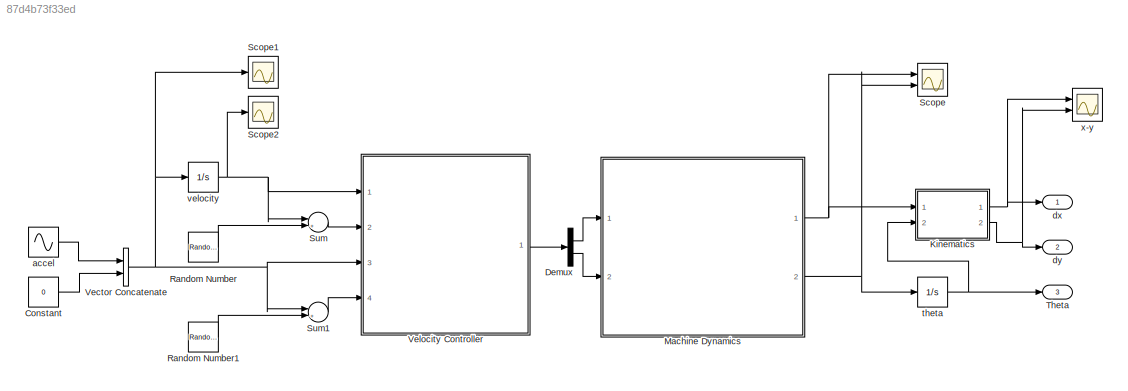
MODEL slx_87d4b73f33ed
KIND model
CONFIG AbsTol = auto
CONFIG EnableMultiTasking = off
CONFIG FixedStep = auto
CONFIG MaxStep = auto
CONFIG MinStep = auto
CONFIG RelTol = 1e-3
CONFIG SampleTimeConstraint = Unconstrained
CONFIG Solver = VariableStepAuto
CONFIG SolverName = VariableStepAuto
CONFIG StartTime = 0.0
CONFIG StopTime = 2*pi/traj_omega
BLOCK [Constant] Constant
  Value = 0
BLOCK [Demux] Demux
  DisplayOption = bar
  Outputs = 2
  Ports = [1, 2]
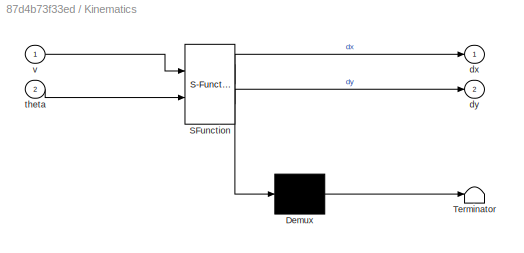
BLOCK [SubSystem] Kinematics
  ErrorFcn = Stateflow.Translate.translate
  PermitHierarchicalResolution = ExplicitOnly
  Ports = [2, 2]
  RequestExecContextInheritance = off
  SFBlockType = MATLAB Function
  TreatAsAtomicUnit = on
BLOCK [Demux] Kinematics/ Demux 
  Outputs = 1
  Ports = [1, 1]
BLOCK [S-Function] Kinematics/ SFunction 
  EnableBusSupport = on
  FunctionName = sf_sfun
  PortCounts = [2 3]
  Ports = [2, 3]
  SFcnIsStateOwnerBlock = off
  SFunctionDeploymentMode = off
  Tag = Stateflow S-Function Model 1
BLOCK [Terminator] Kinematics/ Terminator 
BLOCK [Outport] Kinematics/dx
  IconDisplay = Port number
BLOCK [Outport] Kinematics/dy
  IconDisplay = Port number
  Port = 2
BLOCK [Inport] Kinematics/theta
  IconDisplay = Port number
  Port = 2
BLOCK [Inport] Kinematics/v
  IconDisplay = Port number
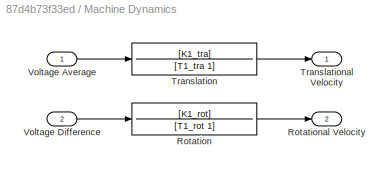
BLOCK [SubSystem] Machine Dynamics
  Ports = [2, 2]
  RequestExecContextInheritance = off
BLOCK [TransferFcn] Machine Dynamics/Rotation
  Denominator = [T1_rot 1]
  Numerator = [K1_rot]
BLOCK [Outport] Machine Dynamics/Rotational Velocity
  IconDisplay = Port number
  Port = 2
BLOCK [TransferFcn] Machine Dynamics/Translation
  Denominator = [T1_tra 1]
  Numerator = [K1_tra]
BLOCK [Outport] Machine Dynamics/Translational Velocity
  IconDisplay = Port number
BLOCK [Inport] Machine Dynamics/Voltage Average
  IconDisplay = Port number
BLOCK [Inport] Machine Dynamics/Voltage Difference
  IconDisplay = Port number
  Port = 2
BLOCK [RandomNumber] Random Number
  SampleTime = 0.001
  Variance = 0
BLOCK [RandomNumber] Random Number1
  SampleTime = 0.1
  Variance = 0
BLOCK [Scope] Scope
  Floating = off
  NumInputPorts = 2
  Ports = [2]
  ScopeSpecificationString = Simulink.scopes.TimeScopeBlockCfg('CurrentConfiguration', extmgr.ConfigurationSet(extmgr.Configuration('Core','General UI',true),extmgr.Configuration('Core','Source UI',true),extmgr.Configuration('Sources','WiredSimulink',true,'DataLoggingVariableName','ScopeData1'),extmgr.Configuration('Visuals','Time Domain',true,'SerializedDisplays',{struct('MinYLimReal','-224.99756','MaxYLimReal','2024.978','Y...<+1387ch>
BLOCK [Scope] Scope1
  Floating = off
  NumInputPorts = 1
  Ports = [1]
  ScopeSpecificationString = Simulink.scopes.TimeScopeBlockCfg('CurrentConfiguration', extmgr.ConfigurationSet(extmgr.Configuration('Core','General UI',true),extmgr.Configuration('Core','Source UI',true),extmgr.Configuration('Sources','WiredSimulink',true,'DataLoggingVariableName','ScopeData3'),extmgr.Configuration('Visuals','Time Domain',true,'SerializedDisplays',{struct('MinYLimReal','-11227.80069','MaxYLimReal','11227.8006...<+1394ch>
BLOCK [Scope] Scope2
  Floating = off
  NumInputPorts = 1
  Ports = [1]
  ScopeSpecificationString = Simulink.scopes.TimeScopeBlockCfg('CurrentConfiguration', extmgr.ConfigurationSet(extmgr.Configuration('Core','General UI',true),extmgr.Configuration('Core','Source UI',true),extmgr.Configuration('Sources','WiredSimulink',true,'DataLoggingVariableName','ScopeData4'),extmgr.Configuration('Visuals','Time Domain',true,'SerializedDisplays',{struct('MinYLimReal','-150.00000','MaxYLimReal','1350.00000',...<+1454ch>
BLOCK [Sum] Sum
  IconShape = round
  InputSameDT = off
  Inputs = |++
  OutDataTypeStr = Inherit: Inherit via internal rule
  Ports = [2, 1]
  SaturateOnIntegerOverflow = off
BLOCK [Sum] Sum1
  IconShape = round
  InputSameDT = off
  Inputs = |++
  OutDataTypeStr = Inherit: Inherit via internal rule
  Ports = [2, 1]
  SaturateOnIntegerOverflow = off
BLOCK [Outport] Theta
  IconDisplay = Port number
  Port = 3
BLOCK [Concatenate] Vector Concatenate
  Ports = [2, 1]
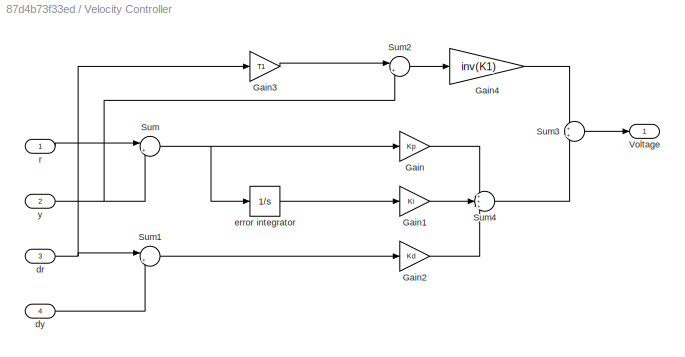
BLOCK [SubSystem] Velocity Controller
  Ports = [4, 1]
  RequestExecContextInheritance = off
BLOCK [Gain] Velocity Controller/Gain
  Gain = Kp
  Multiplication = Matrix(K*u)
  OutDataTypeStr = Inherit: Inherit via internal rule
  ParamDataTypeStr = Inherit: Inherit via internal rule
  SaturateOnIntegerOverflow = off
BLOCK [Gain] Velocity Controller/Gain1
  Gain = Ki
  Multiplication = Matrix(K*u)
  OutDataTypeStr = Inherit: Inherit via internal rule
  ParamDataTypeStr = Inherit: Inherit via internal rule
  SaturateOnIntegerOverflow = off
BLOCK [Gain] Velocity Controller/Gain2
  Gain = Kd
  Multiplication = Matrix(K*u)
  OutDataTypeStr = Inherit: Inherit via internal rule
  ParamDataTypeStr = Inherit: Inherit via internal rule
  SaturateOnIntegerOverflow = off
BLOCK [Gain] Velocity Controller/Gain3
  Gain = T1
  Multiplication = Matrix(K*u)
  OutDataTypeStr = Inherit: Inherit via internal rule
  ParamDataTypeStr = Inherit: Inherit via internal rule
  SaturateOnIntegerOverflow = off
BLOCK [Gain] Velocity Controller/Gain4
  Gain = inv(K1)
  Multiplication = Matrix(K*u)
  OutDataTypeStr = Inherit: Inherit via internal rule
  ParamDataTypeStr = Inherit: Inherit via internal rule
  SaturateOnIntegerOverflow = off
BLOCK [Sum] Velocity Controller/Sum
  IconShape = round
  InputSameDT = off
  Inputs = |+-
  OutDataTypeStr = Inherit: Inherit via internal rule
  Ports = [2, 1]
  SaturateOnIntegerOverflow = off
BLOCK [Sum] Velocity Controller/Sum1
  IconShape = round
  InputSameDT = off
  Inputs = |+-
  OutDataTypeStr = Inherit: Inherit via internal rule
  Ports = [2, 1]
  SaturateOnIntegerOverflow = off
BLOCK [Sum] Velocity Controller/Sum2
  IconShape = round
  InputSameDT = off
  Inputs = |++
  OutDataTypeStr = Inherit: Inherit via internal rule
  Ports = [2, 1]
  SaturateOnIntegerOverflow = off
BLOCK [Sum] Velocity Controller/Sum3
  IconShape = round
  InputSameDT = off
  OutDataTypeStr = Inherit: Inherit via internal rule
  Ports = [2, 1]
  SaturateOnIntegerOverflow = off
BLOCK [Sum] Velocity Controller/Sum4
  IconShape = round
  InputSameDT = off
  Inputs = +++
  OutDataTypeStr = Inherit: Inherit via internal rule
  Ports = [3, 1]
  SaturateOnIntegerOverflow = off
BLOCK [Outport] Velocity Controller/Voltage
  IconDisplay = Port number
BLOCK [Inport] Velocity Controller/dr
  IconDisplay = Port number
  Port = 3
BLOCK [Inport] Velocity Controller/dy
  IconDisplay = Port number
  Port = 4
BLOCK [Integrator] Velocity Controller/error integrator
  Ports = [1, 1]
BLOCK [Inport] Velocity Controller/r
  IconDisplay = Port number
BLOCK [Inport] Velocity Controller/y
  IconDisplay = Port number
  Port = 2
BLOCK [Sin] accel
  Amplitude = v_max / 2 * traj_omega
  Frequency = traj_omega
  Ports = [0, 1]
  SampleTime = 0
BLOCK [Outport] dx
  IconDisplay = Port number
BLOCK [Outport] dy
  IconDisplay = Port number
  Port = 2
BLOCK [Integrator] theta
  Ports = [1, 1]
BLOCK [Integrator] velocity
  Ports = [1, 1]
BLOCK [Scope] x-y
  Floating = off
  NumInputPorts = 2
  Ports = [2]
  ScopeSpecificationString = Simulink.scopes.TimeScopeBlockCfg('CurrentConfiguration', extmgr.ConfigurationSet(extmgr.Configuration('Core','General UI',true),extmgr.Configuration('Core','Source UI',true),extmgr.Configuration('Sources','WiredSimulink',true),extmgr.Configuration('Visuals','Time Domain',true,'SerializedDisplays',{struct('MinYLimReal','-224.99756','MaxYLimReal','2024.978','YLabelReal','','MinYLimMag',' 0.00000','...<+1414ch>
LINE Constant:1 -> Vector Concatenate:2
LINE Demux:1 -> Machine Dynamics:1
LINE Demux:2 -> Machine Dynamics:2
NET Kinematics:1 -> dx:1, x-y:1
NET Kinematics:2 -> dy:1, x-y:2
LINE Machine Dynamics/Rotation:1 -> Machine Dynamics/Rotational Velocity:1
LINE Machine Dynamics/Translation:1 -> Machine Dynamics/Translational Velocity:1
LINE Machine Dynamics/Voltage Average:1 -> Machine Dynamics/Translation:1
LINE Machine Dynamics/Voltage Difference:1 -> Machine Dynamics/Rotation:1
NET Machine Dynamics:1 -> Kinematics:1, Scope:1
NET Machine Dynamics:2 -> Scope:2, theta:1
LINE Random Number1:1 -> Sum1:2
LINE Random Number:1 -> Sum:2
LINE Sum1:1 -> Velocity Controller:4
LINE Sum:1 -> Velocity Controller:2
NET Vector Concatenate:1 -> Scope1:1, Sum1:1, Velocity Controller:3, velocity:1
LINE Velocity Controller/Gain1:1 -> Velocity Controller/Sum4:2
LINE Velocity Controller/Gain2:1 -> Velocity Controller/Sum4:3
LINE Velocity Controller/Gain3:1 -> Velocity Controller/Sum2:1
LINE Velocity Controller/Gain4:1 -> Velocity Controller/Sum3:1
LINE Velocity Controller/Gain:1 -> Velocity Controller/Sum4:1
LINE Velocity Controller/Sum1:1 -> Velocity Controller/Gain2:1
LINE Velocity Controller/Sum2:1 -> Velocity Controller/Gain4:1
LINE Velocity Controller/Sum3:1 -> Velocity Controller/Voltage:1
LINE Velocity Controller/Sum4:1 -> Velocity Controller/Sum3:2
NET Velocity Controller/Sum:1 -> Velocity Controller/Gain:1, Velocity Controller/error integrator:1
NET Velocity Controller/dr:1 -> Velocity Controller/Gain3:1, Velocity Controller/Sum1:1
LINE Velocity Controller/dy:1 -> Velocity Controller/Sum1:2
LINE Velocity Controller/error integrator:1 -> Velocity Controller/Gain1:1
LINE Velocity Controller/r:1 -> Velocity Controller/Sum:1
NET Velocity Controller/y:1 -> Velocity Controller/Sum2:2, Velocity Controller/Sum:2
LINE Velocity Controller:1 -> Demux:1
LINE accel:1 -> Vector Concatenate:1
NET theta:1 -> Kinematics:2, Theta:1
NET velocity:1 -> Scope2:1, Sum:1, Velocity Controller:1
note: NET lines group one-source signal fan-out (src -> all destinations, sorted); 1:1 wires keep LINE
CHART Kinematics states=1 transitions=1
  STATE_LABEL 'eML_blk_kernel()'
  STATE_LABEL 'SCRIPT:\nfunction [dx, dy] = fcn(v, theta)\n    dx = v * cos(theta);\n    dy = v + sin(theta);\nend'
